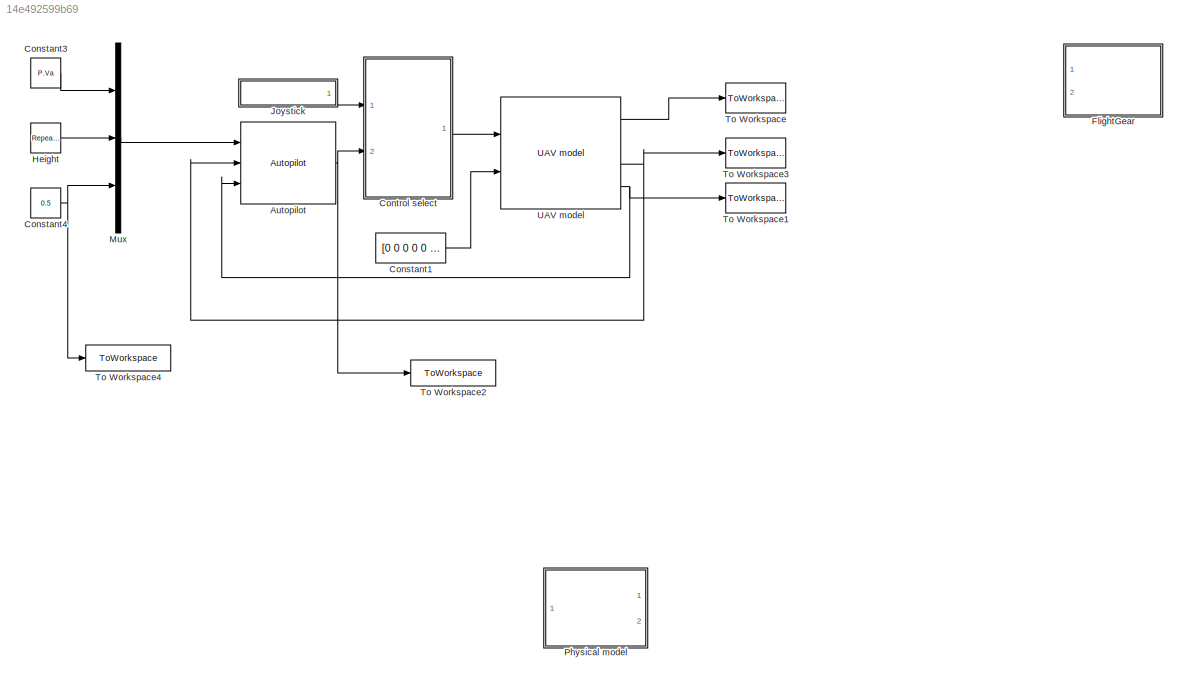
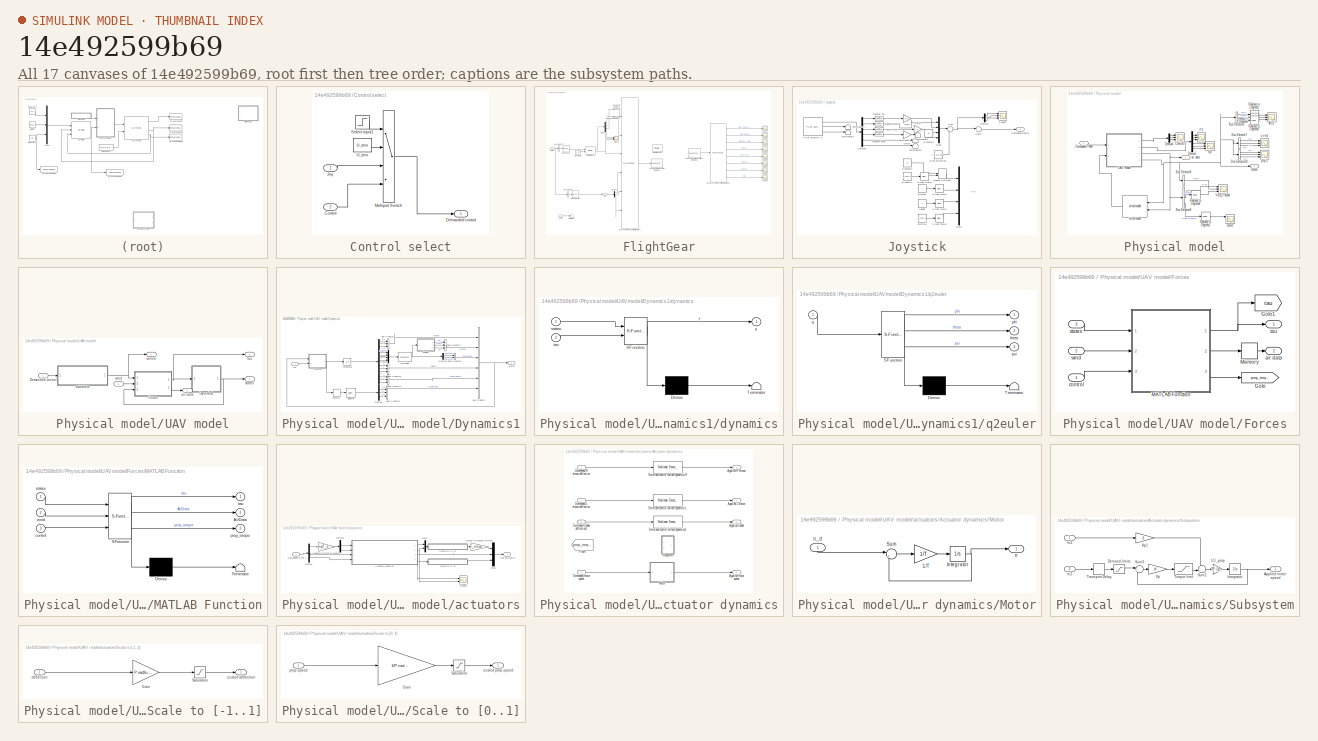
[diagram: thumbnail index - all 17 canvases of the model, root first then tree order]
MODEL slx_14e492599b69
KIND model
CONFIG AbsTol = auto
CONFIG FixedStep = auto
CONFIG MaxStep = auto
CONFIG MinStep = auto
CONFIG RelTol = 1e-3
CONFIG SampleTimeConstraint = Unconstrained
CONFIG Solver = ode45
CONFIG SolverMode = Auto
CONFIG SolverName = ode45
CONFIG StartTime = 0.0
CONFIG StopTime = 100
BLOCK [Reference] Autopilot  REF=X8_lib/Autopilot
  Ports = [3, 1]
  SourceBlock = X8_lib/Autopilot
BLOCK [Constant] Constant1
  Value = [0 0 0 0 0 0]
BLOCK [Constant] Constant3
  Value = P.Va
BLOCK [Constant] Constant4
  Value = 0.5
BLOCK [SubSystem] Control select
  Ports = [2, 1]
  RequestExecContextInheritance = off
  Variant = off
BLOCK [Inport] Control select/Control
  IconDisplay = Port number
  Port = 2
BLOCK [Outport] Control select/Demanded control
  IconDisplay = Port number
BLOCK [Inport] Control select/Joy
  IconDisplay = Port number
BLOCK [MultiPortSwitch] Control select/Multiport Switch
  InputSameDT = off
  Ports = [4, 1]
  SaturateOnIntegerOverflow = off
BLOCK [Step] Control select/Select input1
  After = 3
  Before = 1
  SampleTime = 0
  Time = 0
BLOCK [Constant] Control select/U_trim
  Value = U_trim
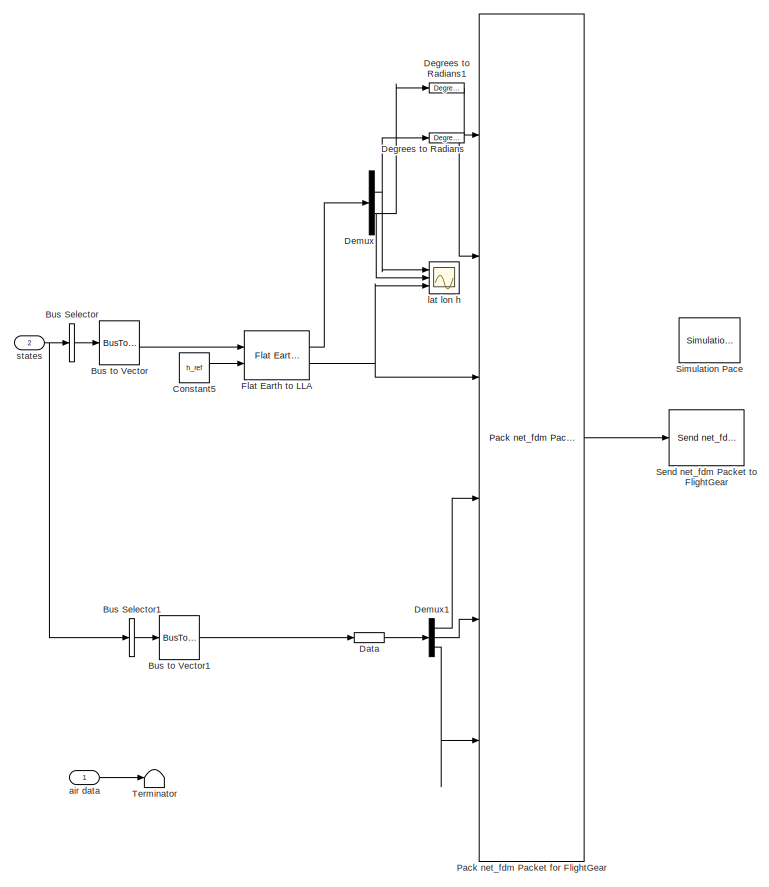
[diagram: FlightGear - part 1/2, left side, full height]
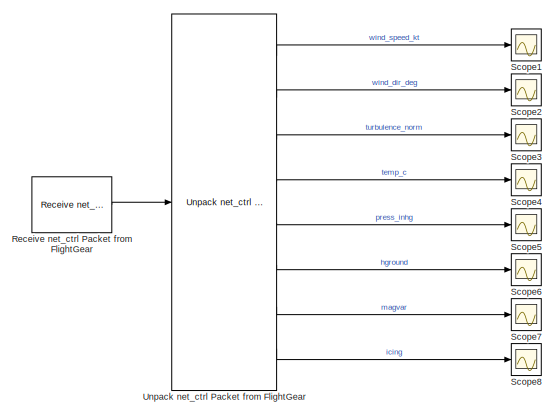
[diagram: FlightGear - part 2/2, middle right region]
BLOCK [SubSystem] FlightGear
  Commented = on
  Ports = [2]
  RequestExecContextInheritance = off
  Variant = off
BLOCK [BusSelector] FlightGear/Bus Selector
  OutputAsBus = on
  OutputSignals = Position.p_N,Position.p_E,Position.p_D
  Ports = [1, 1]
BLOCK [BusSelector] FlightGear/Bus Selector1
  OutputAsBus = on
  OutputSignals = Attitude
  Ports = [1, 1]
BLOCK [BusToVector] FlightGear/Bus to Vector
BLOCK [BusToVector] FlightGear/Bus to Vector1
BLOCK [Constant] FlightGear/Constant5
  Value = h_ref
BLOCK [DataTypeConversion] FlightGear/Data
  OutDataTypeStr = single
  RndMeth = Floor
  SaturateOnIntegerOverflow = off
BLOCK [Reference] FlightGear/Degrees to Radians  REF=simulink_extras/Transformations/Degrees to
Radians
  Ports = [1, 1]
  SourceBlock = simulink_extras/Transformations/Degrees to\nRadians
  SourceType = DegreesToRadians
BLOCK [Reference] FlightGear/Degrees to Radians1  REF=simulink_extras/Transformations/Degrees to
Radians
  Ports = [1, 1]
  SourceBlock = simulink_extras/Transformations/Degrees to\nRadians
  SourceType = DegreesToRadians
BLOCK [Demux] FlightGear/Demux
  DisplayOption = bar
  Outputs = 2
  Ports = [1, 2]
BLOCK [Demux] FlightGear/Demux1
  DisplayOption = bar
  Outputs = 3
  Ports = [1, 3]
BLOCK [Reference] FlightGear/Flat Earth to LLA  REF=aerolibtransform2/Flat Earth to LLA
  Ports = [2, 2]
  SourceBlock = aerolibtransform2/Flat Earth to LLA
  SourceType = Flat Earth to LLA
BLOCK [Reference] FlightGear/Pack net_fdm Packet for FlightGear  REF=aerolibfltsims/Pack
net_fdm Packet
for FlightGear
  AttributesFormatString = Version Selected: %<FlightGearVersion>
  Ports = [6, 1]
  SourceBlock = aerolibfltsims/Pack\nnet_fdm Packet\nfor FlightGear
  SourceType = FlightGearPackNetFdm
BLOCK [Reference] FlightGear/Receive net_ctrl Packet from FlightGear  REF=aerolibfltsims/Receive net_ctrl
Packet from FlightGear
  AttributesFormatString = Version Selected:\n%<FlightGearVersion>
  Ports = [0, 1]
  SourceBlock = aerolibfltsims/Receive net_ctrl\nPacket from FlightGear
  SourceType = FlightGearReceiveNetCtrl
BLOCK [Scope] FlightGear/Scope1
  Ports = [1]
  ScopeSpecificationString = C++SS(StrPVP('Location','[1488, 734, 1812, 973]'),StrPVP('Open','off'),MxPVP('AxesTitles',24,'struct(''axes1'',''%<SignalLabel>'')'),MxPVP('ScopeGraphics',28,'struct(''FigureColor'',''[0.5 0.5 0.5]'',''AxesColor'',''[0 0 0]'',''AxesTickColor'',''[1 1 1]'',''LineColors'',''[1 1 0;1 0 1;0 1 1;1 0 0;0 1 0;0 0 1]'',''LineStyles'',''-|-|-|-|-|-'',''LineWidths'',''[0.5 0.5 0.5 0.5 0.5 0.5]'',''MarkerSty...<+284ch>
BLOCK [Scope] FlightGear/Scope2
  Ports = [1]
  ScopeSpecificationString = C++SS(StrPVP('Location','[188, 390, 512, 629]'),StrPVP('Open','off'),MxPVP('AxesTitles',24,'struct(''axes1'',''%<SignalLabel>'')'),StrPVP('SaveName','ScopeData1'),StrPVP('DataFormat','StructureWithTime'),StrPVP('BlockParamSampleTime','0'),StrPVP('LimitDataPoints','on'),StrPVP('Decimation','1'),StrPVP('BlockParamSampleInput','off'))
BLOCK [Scope] FlightGear/Scope3
  Ports = [1]
  ScopeSpecificationString = C++SS(StrPVP('Location','[188, 390, 512, 629]'),StrPVP('Open','off'),MxPVP('AxesTitles',24,'struct(''axes1'',''%<SignalLabel>'')'),StrPVP('SaveName','ScopeData2'),StrPVP('DataFormat','StructureWithTime'),StrPVP('BlockParamSampleTime','0'),StrPVP('LimitDataPoints','on'),StrPVP('Decimation','1'),StrPVP('BlockParamSampleInput','off'))
BLOCK [Scope] FlightGear/Scope4
  Ports = [1]
  ScopeSpecificationString = C++SS(StrPVP('Location','[1059, 481, 1383, 720]'),StrPVP('Open','off'),MxPVP('AxesTitles',24,'struct(''axes1'',''%<SignalLabel>'')'),MxPVP('ScopeGraphics',28,'struct(''FigureColor'',''[0.5 0.5 0.5]'',''AxesColor'',''[0 0 0]'',''AxesTickColor'',''[1 1 1]'',''LineColors'',''[1 1 0;1 0 1;0 1 1;1 0 0;0 1 0;0 0 1]'',''LineStyles'',''-|-|-|-|-|-'',''LineWidths'',''[0.5 0.5 0.5 0.5 0.5 0.5]'',''MarkerSty...<+295ch>
BLOCK [Scope] FlightGear/Scope5
  Ports = [1]
  ScopeSpecificationString = C++SS(StrPVP('Location','[188, 390, 512, 629]'),StrPVP('Open','off'),MxPVP('AxesTitles',24,'struct(''axes1'',''%<SignalLabel>'')'),MxPVP('ScopeGraphics',28,'struct(''FigureColor'',''[0.5 0.5 0.5]'',''AxesColor'',''[0 0 0]'',''AxesTickColor'',''[1 1 1]'',''LineColors'',''[1 1 0;1 0 1;0 1 1;1 0 0;0 1 0;0 0 1]'',''LineStyles'',''-|-|-|-|-|-'',''LineWidths'',''[0.5 0.5 0.5 0.5 0.5 0.5]'',''MarkerStyle...<+293ch>
BLOCK [Scope] FlightGear/Scope6
  Ports = [1]
  ScopeSpecificationString = C++SS(StrPVP('Location','[188, 390, 512, 629]'),StrPVP('Open','off'),MxPVP('AxesTitles',24,'struct(''axes1'',''%<SignalLabel>'')'),StrPVP('SaveName','ScopeData5'),StrPVP('DataFormat','StructureWithTime'),StrPVP('BlockParamSampleTime','0'),StrPVP('LimitDataPoints','on'),StrPVP('Decimation','1'),StrPVP('BlockParamSampleInput','off'))
BLOCK [Scope] FlightGear/Scope7
  Ports = [1]
  ScopeSpecificationString = C++SS(StrPVP('Location','[188, 390, 512, 629]'),StrPVP('Open','off'),MxPVP('AxesTitles',24,'struct(''axes1'',''%<SignalLabel>'')'),StrPVP('SaveName','ScopeData6'),StrPVP('DataFormat','StructureWithTime'),StrPVP('BlockParamSampleTime','0'),StrPVP('LimitDataPoints','on'),StrPVP('Decimation','1'),StrPVP('BlockParamSampleInput','off'))
BLOCK [Scope] FlightGear/Scope8
  Ports = [1]
  ScopeSpecificationString = C++SS(StrPVP('Location','[188, 390, 512, 629]'),StrPVP('Open','off'),MxPVP('AxesTitles',24,'struct(''axes1'',''%<SignalLabel>'')'),StrPVP('SaveName','ScopeData7'),StrPVP('DataFormat','StructureWithTime'),StrPVP('BlockParamSampleTime','0'),StrPVP('LimitDataPoints','on'),StrPVP('Decimation','1'),StrPVP('BlockParamSampleInput','off'))
BLOCK [Reference] FlightGear/Send net_fdm Packet to FlightGear  REF=aerolibfltsims/Send
net_fdm Packet
to FlightGear
  Ports = [1]
  SourceBlock = aerolibfltsims/Send\nnet_fdm Packet\nto FlightGear
  SourceType = FlightGearSendNetFdm
BLOCK [Reference] FlightGear/Simulation Pace  REF=aerolibanimutils/Simulation Pace
  AttributesFormatString = %<SimulationPace> sec/sec
  Ports = []
  SourceBlock = aerolibanimutils/Simulation Pace
  SourceType = Simulation Pace
BLOCK [Terminator] FlightGear/Terminator
BLOCK [Reference] FlightGear/Unpack net_ctrl Packet from FlightGear  REF=aerolibfltsims/Unpack
net_ctrl Packet
from FlightGear
  AttributesFormatString = Version Selected: %<FlightGearVersion>
  Ports = [1, 8]
  SourceBlock = aerolibfltsims/Unpack\nnet_ctrl Packet\nfrom FlightGear
  SourceType = FlightGearUnpackNetCtrl
BLOCK [Inport] FlightGear/air data
  IconDisplay = Port number
BLOCK [Scope] FlightGear/lat lon h
  NumInputPorts = 3
  Ports = [3]
  ScopeSpecificationString = C++SS(StrPVP('Location','[969, 56, 1913, 1151]'),StrPVP('Open','off'),MxPVP('AxesTitles',24,'struct(''axes1'',''%<SignalLabel>'',''axes2'',''%<SignalLabel>'',''axes3'',''%<SignalLabel>'')'),MxPVP('ScopeGraphics',28,'struct(''FigureColor'',''[0.5 0.5 0.5]'',''AxesColor'',''[0 0 0]'',''AxesTickColor'',''[1 1 1]'',''LineColors'',''[1 1 0;1 0 1;0 1 1;1 0 0;0 1 0;0 0 1]'',''LineStyles'',''-|-|-|-|-|-''...<+376ch>
BLOCK [Inport] FlightGear/states
  IconDisplay = Port number
  Port = 2
BLOCK [Reference] Height  REF=simulink/Sources/Repeating
Sequence
  Ports = [0, 1]
  SourceBlock = simulink/Sources/Repeating\nSequence
  SourceType = Repeating table
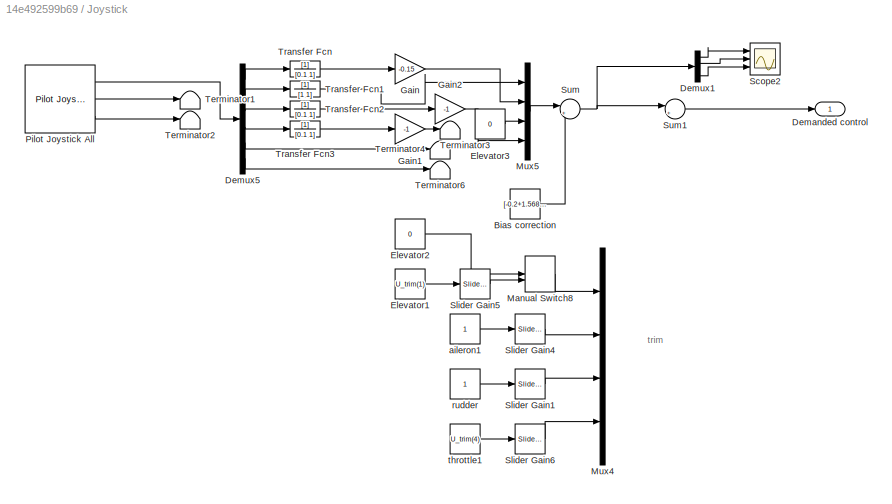
BLOCK [SubSystem] Joystick
  Commented = on
  Ports = [0, 1]
  RequestExecContextInheritance = off
  Variant = off
BLOCK [Constant] Joystick/Bias correction
  Value = [-0.2+1.5687e-3   3e-5  0.0   0.9687-0.2]
BLOCK [Outport] Joystick/Demanded control
  IconDisplay = Port number
BLOCK [Demux] Joystick/Demux1
  DisplayOption = bar
  Ports = [1, 4]
BLOCK [Demux] Joystick/Demux5
  DisplayOption = bar
  Outputs = 6
  Ports = [1, 6]
BLOCK [Constant] Joystick/Elevator1
  Value = U_trim(1)
BLOCK [Constant] Joystick/Elevator2
  Value = 0
BLOCK [Constant] Joystick/Elevator3
  Value = 0
BLOCK [Gain] Joystick/Gain
  Gain = -0.15
  OutDataTypeStr = Inherit: Inherit via internal rule
  ParamDataTypeStr = Inherit: Inherit via internal rule
  SaturateOnIntegerOverflow = off
BLOCK [Gain] Joystick/Gain1
  Gain = -1
  OutDataTypeStr = Inherit: Inherit via internal rule
  ParamDataTypeStr = Inherit: Inherit via internal rule
  SaturateOnIntegerOverflow = off
BLOCK [Gain] Joystick/Gain2
  Gain = -1
  OutDataTypeStr = Inherit: Inherit via internal rule
  ParamDataTypeStr = Inherit: Inherit via internal rule
  SaturateOnIntegerOverflow = off
BLOCK [ManualSwitch] Joystick/Manual Switch8
  CurrentSetting = 0
BLOCK [Mux] Joystick/Mux4
  DisplayOption = bar
  Ports = [4, 1]
BLOCK [Mux] Joystick/Mux5
  DisplayOption = bar
  Ports = [4, 1]
BLOCK [Reference] Joystick/Pilot Joystick All  REF=aerolibanimutils/Pilot Joystick
  Ports = [0, 3]
  SourceBlock = aerolibanimutils/Pilot Joystick
  SourceType = PilotJoystick
BLOCK [Scope] Joystick/Scope2
  NumInputPorts = 3
  Ports = [3]
  ScopeSpecificationString = C++SS(StrPVP('Location','[969, 56, 1913, 1151]'),StrPVP('Open','off'),StrPVP('ZoomMode','yonly'),MxPVP('AxesTitles',24,'struct(''axes1'',''%<SignalLabel>'',''axes2'',''%<SignalLabel>'',''axes3'',''%<SignalLabel>'')'),MxPVP('ScopeGraphics',28,'struct(''FigureColor'',''[0.5 0.5 0.5]'',''AxesColor'',''[0 0 0]'',''AxesTickColor'',''[1 1 1]'',''LineColors'',''[1 1 0;1 0 1;0 1 1;1 0 0;0 1 0;0 0 1]'',''L...<+414ch>
BLOCK [Reference] Joystick/Slider Gain1  REF=simulink/Math
Operations/Slider
Gain
  Ports = [1, 1]
  SourceBlock = simulink/Math\nOperations/Slider\nGain
  SourceType = Slider Gain
BLOCK [Reference] Joystick/Slider Gain4  REF=simulink/Math
Operations/Slider
Gain
  Ports = [1, 1]
  SourceBlock = simulink/Math\nOperations/Slider\nGain
  SourceType = Slider Gain
BLOCK [Reference] Joystick/Slider Gain5  REF=simulink/Math
Operations/Slider
Gain
  Ports = [1, 1]
  SourceBlock = simulink/Math\nOperations/Slider\nGain
  SourceType = Slider Gain
BLOCK [Reference] Joystick/Slider Gain6  REF=simulink/Math
Operations/Slider
Gain
  Ports = [1, 1]
  SourceBlock = simulink/Math\nOperations/Slider\nGain
  SourceType = Slider Gain
BLOCK [Sum] Joystick/Sum
  IconShape = round
  InputSameDT = off
  Inputs = |++
  OutDataTypeStr = Inherit: Inherit via internal rule
  Ports = [2, 1]
  SaturateOnIntegerOverflow = off
BLOCK [Sum] Joystick/Sum1
  IconShape = round
  InputSameDT = off
  Inputs = |++
  OutDataTypeStr = Inherit: Inherit via internal rule
  Ports = [2, 1]
  SaturateOnIntegerOverflow = off
BLOCK [Terminator] Joystick/Terminator1
BLOCK [Terminator] Joystick/Terminator2
BLOCK [Terminator] Joystick/Terminator3
BLOCK [Terminator] Joystick/Terminator4
BLOCK [Terminator] Joystick/Terminator6
BLOCK [TransferFcn] Joystick/Transfer Fcn
  Denominator = [0.1 1]
BLOCK [TransferFcn] Joystick/Transfer Fcn1
  Denominator = [1 1]
BLOCK [TransferFcn] Joystick/Transfer Fcn2
  Denominator = [0.1 1]
BLOCK [TransferFcn] Joystick/Transfer Fcn3
  Denominator = [0.1 1]
BLOCK [Constant] Joystick/aileron1
BLOCK [Constant] Joystick/rudder
BLOCK [Constant] Joystick/throttle1
  Value = U_trim(4)
BLOCK [Mux] Mux
  DisplayOption = bar
  Inputs = 3
  Ports = [3, 1]
BLOCK [SubSystem] Physical model
  Ports = [1, 2]
  RequestExecContextInheritance = off
  Variant = off
BLOCK [Scope] Physical model/Att1
  NumInputPorts = 3
  Ports = [3]
  ScopeSpecificationString = Simulink.scopes.TimeScopeBlockCfg('CurrentConfiguration', extmgr.ConfigurationSet(extmgr.Configuration('Core','General UI',true),extmgr.Configuration('Core','Source UI',true),extmgr.Configuration('Sources','WiredSimulink',true,'DataLoggingVariableName','ScopeData27','DataLoggingSaveFormat','StructureWithTime','DataLoggingDecimation','1','DataLoggingDecimateData',true),extmgr.Configuration('Visuals...<+3055ch>
BLOCK [BusSelector] Physical model/Bus Selector10
  OutputSignals = AngularVelocity.p,AngularVelocity.q,AngularVelocity.r
  Ports = [1, 3]
BLOCK [BusSelector] Physical model/Bus Selector6
  OutputSignals = Attitude.phi,Attitude.theta,Attitude.psi
  Ports = [1, 3]
BLOCK [BusSelector] Physical model/Bus Selector7
  OutputSignals = Velocity.u,Velocity.v,Velocity.w
  Ports = [1, 3]
BLOCK [BusSelector] Physical model/Bus Selector8
  OutputSignals = Va,alpha,Course_angle
  Ports = [1, 3]
BLOCK [BusSelector] Physical model/Bus Selector9
  OutputSignals = Position.p_D
  Ports = [1, 1]
BLOCK [Scope] Physical model/Control2
  NumInputPorts = 3
  Ports = [3]
  ScopeSpecificationString = Simulink.scopes.TimeScopeBlockCfg('CurrentConfiguration', extmgr.ConfigurationSet(extmgr.Configuration('Core','General UI',true),extmgr.Configuration('Core','Source UI',true),extmgr.Configuration('Sources','WiredSimulink',true,'DataLoggingVariableName','ScopeData28','DataLoggingSaveFormat','StructureWithTime','DataLoggingDecimation','1','DataLoggingDecimateData',true),extmgr.Configuration('Visuals...<+2928ch>
BLOCK [Inport] Physical model/Demanded PWM
  IconDisplay = Port number
BLOCK [Demux] Physical model/Demux4
  DisplayOption = bar
  Ports = [1, 4]
BLOCK [Demux] Physical model/Demux5
  DisplayOption = bar
  Outputs = 6
  Ports = [1, 6]
BLOCK [Scope] Physical model/F2
  NumInputPorts = 3
  Ports = [3]
  ScopeSpecificationString = C++SS(StrPVP('Location','[6, 57, 950, 1152]'),StrPVP('Open','off'),MxPVP('AxesTitles',24,'struct(''axes1'',''%<SignalLabel>'',''axes2'',''%<SignalLabel>'',''axes3'',''%<SignalLabel>'')'),MxPVP('ScopeGraphics',28,'struct(''FigureColor'',''[0.5 0.5 0.5]'',''AxesColor'',''[0 0 0]'',''AxesTickColor'',''[1 1 1]'',''LineColors'',''[1 1 0;1 0 1;0 1 1;1 0 0;0 1 0;0 0 1]'',''LineStyles'',''-|-|-|-|-|-'',''...<+354ch>
BLOCK [Scope] Physical model/M2
  NumInputPorts = 3
  Ports = [3]
  ScopeSpecificationString = C++SS(StrPVP('Location','[41, 95, 985, 1190]'),StrPVP('Open','off'),StrPVP('ZoomMode','yonly'),MxPVP('AxesTitles',24,'struct(''axes1'',''%<SignalLabel>'',''axes2'',''%<SignalLabel>'',''axes3'',''%<SignalLabel>'')'),MxPVP('ScopeGraphics',28,'struct(''FigureColor'',''[0.5 0.5 0.5]'',''AxesColor'',''[0 0 0]'',''AxesTickColor'',''[1 1 1]'',''LineColors'',''[1 1 0;1 0 1;0 1 1;1 0 0;0 1 0;0 0 1]'',''Lin...<+387ch>
BLOCK [Reference] Physical model/Radians to Degrees1  REF=simulink_extras/Transformations/Radians
to Degrees
  Ports = [1, 1]
  SourceBlock = simulink_extras/Transformations/Radians\nto Degrees
  SourceType = RadiansToDegrees
BLOCK [Reference] Physical model/Radians to Degrees5  REF=simulink_extras/Transformations/Radians
to Degrees
  Ports = [1, 1]
  SourceBlock = simulink_extras/Transformations/Radians\nto Degrees
  SourceType = RadiansToDegrees
BLOCK [Reference] Physical model/Radians to Degrees6  REF=simulink_extras/Transformations/Radians
to Degrees
  Ports = [1, 1]
  SourceBlock = simulink_extras/Transformations/Radians\nto Degrees
  SourceType = RadiansToDegrees
BLOCK [Reference] Physical model/Radians to Degrees7  REF=simulink_extras/Transformations/Radians
to Degrees
  Ports = [1, 1]
  SourceBlock = simulink_extras/Transformations/Radians\nto Degrees
  SourceType = RadiansToDegrees
BLOCK [Reference] Physical model/Radians to Degrees8  REF=simulink_extras/Transformations/Radians
to Degrees
  Ports = [1, 1]
  SourceBlock = simulink_extras/Transformations/Radians\nto Degrees
  SourceType = RadiansToDegrees
BLOCK [SubSystem] Physical model/UAV model
  AncestorBlock = X8_lib/UAV model
  Ports = [2, 4]
  RequestExecContextInheritance = off
  Variant = off
BLOCK [Inport] Physical model/UAV model/Demanded control
  IconDisplay = Port number
BLOCK [SubSystem] Physical model/UAV model/Dynamics1
  Ports = [1, 1]
  RequestExecContextInheritance = off
  Variant = off
BLOCK [BusCreator] Physical model/UAV model/Dynamics1/Bus Creator
  DisplayOption = bar
  InheritFromInputs = on
  Inputs = 6
  OutDataTypeStr = Bus: States
  Ports = [6, 1]
BLOCK [BusCreator] Physical model/UAV model/Dynamics1/Bus Creator1
  DisplayOption = bar
  InheritFromInputs = on
  Inputs = 3
  OutDataTypeStr = Bus: Position
  Ports = [3, 1]
BLOCK [BusCreator] Physical model/UAV model/Dynamics1/Bus Creator2
  DisplayOption = bar
  InheritFromInputs = on
  Inputs = 3
  OutDataTypeStr = Bus: Attitude
  Ports = [3, 1]
BLOCK [BusCreator] Physical model/UAV model/Dynamics1/Bus Creator3
  DisplayOption = bar
  InheritFromInputs = on
  Inputs = 3
  OutDataTypeStr = Bus: Velocity
  Ports = [3, 1]
BLOCK [BusCreator] Physical model/UAV model/Dynamics1/Bus Creator4
  DisplayOption = bar
  InheritFromInputs = on
  Inputs = 3
  OutDataTypeStr = Bus: AngularVelocity
  Ports = [3, 1]
BLOCK [BusCreator] Physical model/UAV model/Dynamics1/Bus Creator5
  DisplayOption = bar
  InheritFromInputs = on
  Inputs = 3
  OutDataTypeStr = Bus: Acceleration
  Ports = [3, 1]
BLOCK [BusCreator] Physical model/UAV model/Dynamics1/Bus Creator6
  DisplayOption = bar
  InheritFromInputs = on
  Inputs = 2
  OutDataTypeStr = Bus: Quaternion
  Ports = [2, 1]
BLOCK [Demux] Physical model/UAV model/Dynamics1/Demux
  DisplayOption = bar
  Outputs = 13
  Ports = [1, 13]
BLOCK [Demux] Physical model/UAV model/Dynamics1/Demux1
  DisplayOption = bar
  Outputs = 3
  Ports = [1, 3]
BLOCK [Demux] Physical model/UAV model/Dynamics1/Demux3
  DisplayOption = bar
  Outputs = [1,3]
  Ports = [1, 2]
BLOCK [Integrator] Physical model/UAV model/Dynamics1/Integrator
  InitialCondition = [pos0,quat0,vel0,rate0]%x0(1:13)
  Ports = [1, 1]
BLOCK [Memory] Physical model/UAV model/Dynamics1/Memory
BLOCK [Mux] Physical model/UAV model/Dynamics1/Mux1
  DisplayOption = bar
  Ports = [4, 1]
BLOCK [Reference] Physical model/UAV model/Dynamics1/Normalize  REF=aerolibutil/Quaternion
Normalize
  Ports = [1, 1]
  SourceBlock = aerolibutil/Quaternion\nNormalize
  SourceType = Quaternion Normalize
BLOCK [Selector] Physical model/UAV model/Dynamics1/Selector
  IndexOptions = Index vector (dialog)
  Indices = 8:10
  InputPortWidth = 13
  OutputSizes = 1
  Ports = [1, 1]
BLOCK [SubSystem] Physical model/UAV model/Dynamics1/dynamics
  ErrorFcn = Stateflow.Translate.translate
  PermitHierarchicalResolution = ExplicitOnly
  Ports = [2, 1]
  RequestExecContextInheritance = off
  SFBlockType = MATLAB Function
  TreatAsAtomicUnit = on
  Variant = off
BLOCK [Demux] Physical model/UAV model/Dynamics1/dynamics/ Demux 
  Outputs = 1
  Ports = [1, 1]
BLOCK [S-Function] Physical model/UAV model/Dynamics1/dynamics/ SFunction 
  EnableBusSupport = on
  FunctionName = sf_sfun
  Parameters = P
  PortCounts = [2 2]
  Ports = [2, 2]
  SFunctionDeploymentMode = off
  Tag = Stateflow S-Function demo 3
BLOCK [Terminator] Physical model/UAV model/Dynamics1/dynamics/ Terminator 
BLOCK [Inport] Physical model/UAV model/Dynamics1/dynamics/states
  IconDisplay = Port number
BLOCK [Inport] Physical model/UAV model/Dynamics1/dynamics/tau
  IconDisplay = Port number
  Port = 2
BLOCK [Outport] Physical model/UAV model/Dynamics1/dynamics/y
  IconDisplay = Port number
BLOCK [SubSystem] Physical model/UAV model/Dynamics1/q2euler
  ErrorFcn = Stateflow.Translate.translate
  PermitHierarchicalResolution = ExplicitOnly
  Ports = [1, 3]
  RequestExecContextInheritance = off
  SFBlockType = MATLAB Function
  TreatAsAtomicUnit = on
  Variant = off
BLOCK [Demux] Physical model/UAV model/Dynamics1/q2euler/ Demux 
  Outputs = 1
  Ports = [1, 1]
BLOCK [S-Function] Physical model/UAV model/Dynamics1/q2euler/ SFunction 
  EnableBusSupport = on
  FunctionName = sf_sfun
  PortCounts = [1 4]
  Ports = [1, 4]
  SFunctionDeploymentMode = off
  Tag = Stateflow S-Function demo 2
BLOCK [Terminator] Physical model/UAV model/Dynamics1/q2euler/ Terminator 
BLOCK [Outport] Physical model/UAV model/Dynamics1/q2euler/phi
  IconDisplay = Port number
BLOCK [Outport] Physical model/UAV model/Dynamics1/q2euler/psi
  IconDisplay = Port number
  Port = 3
BLOCK [Inport] Physical model/UAV model/Dynamics1/q2euler/q
  IconDisplay = Port number
BLOCK [Outport] Physical model/UAV model/Dynamics1/q2euler/theta
  IconDisplay = Port number
  Port = 2
BLOCK [Outport] Physical model/UAV model/Dynamics1/states
  IconDisplay = Port number
BLOCK [Inport] Physical model/UAV model/Dynamics1/tau
  IconDisplay = Port number
BLOCK [SubSystem] Physical model/UAV model/Forces
  Ports = [3, 2]
  RequestExecContextInheritance = off
  Variant = off
BLOCK [Goto] Physical model/UAV model/Forces/Goto
  Commented = on
  GotoTag = prop_torque
  TagVisibility = global
BLOCK [Goto] Physical model/UAV model/Forces/Goto1
  Commented = on
  GotoTag = tau
  IconDisplay = Tag and signal name
  TagVisibility = global
BLOCK [SubSystem] Physical model/UAV model/Forces/MATLAB Function
  ErrorFcn = Stateflow.Translate.translate
  PermitHierarchicalResolution = ExplicitOnly
  Ports = [3, 3]
  RequestExecContextInheritance = off
  SFBlockType = MATLAB Function
  TreatAsAtomicUnit = on
  Variant = off
BLOCK [Demux] Physical model/UAV model/Forces/MATLAB Function/ Demux 
  Outputs = 1
  Ports = [1, 1]
BLOCK [S-Function] Physical model/UAV model/Forces/MATLAB Function/ SFunction 
  EnableBusSupport = on
  FunctionName = sf_sfun
  Parameters = P
  PortCounts = [3 4]
  Ports = [3, 4]
  SFunctionDeploymentMode = off
  Tag = Stateflow S-Function demo 1
BLOCK [Terminator] Physical model/UAV model/Forces/MATLAB Function/ Terminator 
BLOCK [Outport] Physical model/UAV model/Forces/MATLAB Function/AirData
  IconDisplay = Port number
  Port = 2
BLOCK [Inport] Physical model/UAV model/Forces/MATLAB Function/control
  IconDisplay = Port number
  Port = 3
BLOCK [Outport] Physical model/UAV model/Forces/MATLAB Function/prop_torque
  IconDisplay = Port number
  Port = 3
BLOCK [Inport] Physical model/UAV model/Forces/MATLAB Function/states
  IconDisplay = Port number
BLOCK [Outport] Physical model/UAV model/Forces/MATLAB Function/tau
  IconDisplay = Port number
BLOCK [Inport] Physical model/UAV model/Forces/MATLAB Function/wind
  IconDisplay = Port number
  Port = 2
BLOCK [Memory] Physical model/UAV model/Forces/Memory
  X0 = 1e-15
BLOCK [Outport] Physical model/UAV model/Forces/air data
  IconDisplay = Port number
  Port = 2
BLOCK [Inport] Physical model/UAV model/Forces/control
  IconDisplay = Port number
BLOCK [Inport] Physical model/UAV model/Forces/states
  IconDisplay = Port number
  Port = 3
BLOCK [Outport] Physical model/UAV model/Forces/tau
  IconDisplay = Port number
BLOCK [Inport] Physical model/UAV model/Forces/wind
  IconDisplay = Port number
  Port = 2
BLOCK [SubSystem] Physical model/UAV model/actuators
  Ports = [1, 1]
  RequestExecContextInheritance = off
  Variant = off
BLOCK [SubSystem] Physical model/UAV model/actuators/Actuator dynamics
  Ports = [4, 4]
  RequestExecContextInheritance = off
  Variant = off
BLOCK [Outport] Physical model/UAV model/actuators/Actuator dynamics/Applied L elevon
  IconDisplay = Port number
  Port = 2
BLOCK [Outport] Physical model/UAV model/actuators/Actuator dynamics/Applied R elevon
  IconDisplay = Port number
BLOCK [Outport] Physical model/UAV model/actuators/Actuator dynamics/Applied motor speed
  IconDisplay = Port number
  Port = 4
BLOCK [Outport] Physical model/UAV model/actuators/Actuator dynamics/Applied rudder
  IconDisplay = Port number
  Port = 3
BLOCK [Inport] Physical model/UAV model/actuators/Actuator dynamics/Demanded L elevon deflection 
  IconDisplay = Port number
  Port = 2
BLOCK [Inport] Physical model/UAV model/actuators/Actuator dynamics/Demanded R elevon deflection
  IconDisplay = Port number
BLOCK [Inport] Physical model/UAV model/actuators/Actuator dynamics/Demanded motor speed
  IconDisplay = Port number
  Port = 4
BLOCK [Inport] Physical model/UAV model/actuators/Actuator dynamics/Demanded rudder deflection1
  IconDisplay = Port number
  Port = 3
BLOCK [From] Physical model/UAV model/actuators/Actuator dynamics/From
  Commented = on
  GotoTag = prop_torque
  IconDisplay = Tag and signal name
  TagVisibility = global
BLOCK [SubSystem] Physical model/UAV model/actuators/Actuator dynamics/Motor
  Ports = [1, 1]
  RequestExecContextInheritance = off
  Variant = off
BLOCK [Gain] Physical model/UAV model/actuators/Actuator dynamics/Motor/1//T
  Gain = 1/T
  OutDataTypeStr = Inherit: Inherit via internal rule
  ParamDataTypeStr = Inherit: Inherit via internal rule
  SaturateOnIntegerOverflow = off
BLOCK [Integrator] Physical model/UAV model/actuators/Actuator dynamics/Motor/Integrator
  ContinuousStateAttributes = 'throttle'
  InitialCondition = X0
  Ports = [1, 1]
BLOCK [Sum] Physical model/UAV model/actuators/Actuator dynamics/Motor/Sum
  IconShape = round
  InputSameDT = off
  Inputs = |+-
  OutDataTypeStr = Inherit: Inherit via internal rule
  Ports = [2, 1]
  SaturateOnIntegerOverflow = off
BLOCK [Outport] Physical model/UAV model/actuators/Actuator dynamics/Motor/n
  IconDisplay = Port number
BLOCK [Inport] Physical model/UAV model/actuators/Actuator dynamics/Motor/n_d
  IconDisplay = Port number
BLOCK [Reference] Physical model/UAV model/actuators/Actuator dynamics/Servo and control surface dynamics L  REF=aerolibactuator/Nonlinear Second-Order Actuator
  Ports = [1, 1]
  SourceBlock = aerolibactuator/Nonlinear Second-Order Actuator
  SourceType = NonlinearSecondOrderActuator
BLOCK [Reference] Physical model/UAV model/actuators/Actuator dynamics/Servo and control surface dynamics R  REF=aerolibactuator/Nonlinear Second-Order Actuator
  Ports = [1, 1]
  SourceBlock = aerolibactuator/Nonlinear Second-Order Actuator
  SourceType = NonlinearSecondOrderActuator
BLOCK [Reference] Physical model/UAV model/actuators/Actuator dynamics/Servo and control surface dynamics1  REF=aerolibactuator/Nonlinear Second-Order Actuator
  Commented = through
  Ports = [1, 1]
  SourceBlock = aerolibactuator/Nonlinear Second-Order Actuator
  SourceType = NonlinearSecondOrderActuator
BLOCK [SubSystem] Physical model/UAV model/actuators/Actuator dynamics/Subsystem
  Commented = on
  Ports = [2, 1]
  RequestExecContextInheritance = off
  Variant = off
BLOCK [Gain] Physical model/UAV model/actuators/Actuator dynamics/Subsystem/1//J_prop
  Gain = 1/P.J_prop
BLOCK [Outport] Physical model/UAV model/actuators/Actuator dynamics/Subsystem/Applied motor speed
  IconDisplay = Port number
BLOCK [Saturate] Physical model/UAV model/actuators/Actuator dynamics/Subsystem/Demand limits
  InputPortMap = u0
  LowerLimit = 0
  Ports = [1, 1]
  UpperLimit = 1
BLOCK [Inport] Physical model/UAV model/actuators/Actuator dynamics/Subsystem/In1
  IconDisplay = Port number
BLOCK [Inport] Physical model/UAV model/actuators/Actuator dynamics/Subsystem/In2
  IconDisplay = Port number
  Port = 2
BLOCK [Integrator] Physical model/UAV model/actuators/Actuator dynamics/Subsystem/Integrator
  InitialCondition = 0.5
  Ports = [1, 1]
BLOCK [Gain] Physical model/UAV model/actuators/Actuator dynamics/Subsystem/Kp
BLOCK [Gain] Physical model/UAV model/actuators/Actuator dynamics/Subsystem/Kp1
  Gain = -1
BLOCK [Sum] Physical model/UAV model/actuators/Actuator dynamics/Subsystem/Sum2
  IconShape = round
  Inputs = -+|
  Ports = [2, 1]
BLOCK [Sum] Physical model/UAV model/actuators/Actuator dynamics/Subsystem/Sum3
  IconShape = round
  Inputs = |+-
  Ports = [2, 1]
BLOCK [Saturate] Physical model/UAV model/actuators/Actuator dynamics/Subsystem/Torque limit
  InputPortMap = u0
  LowerLimit = 0
  Ports = [1, 1]
  UpperLimit = P.motor.torque_max
  ZeroCross = off
BLOCK [TransportDelay] Physical model/UAV model/actuators/Actuator dynamics/Subsystem/Transport Delay
  DelayTime = 0.001
  PadeOrder = 1
  Ports = [1, 1]
BLOCK [Outport] Physical model/UAV model/actuators/Applied control
  IconDisplay = Port number
BLOCK [Inport] Physical model/UAV model/actuators/Demanded PWM
  IconDisplay = Port number
BLOCK [Demux] Physical model/UAV model/actuators/Demux
  DisplayOption = bar
  Outputs = [2,1,1]
  Ports = [1, 3]
BLOCK [Demux] Physical model/UAV model/actuators/Demux2
  DisplayOption = bar
  Outputs = 2
  Ports = [1, 2]
BLOCK [Mux] Physical model/UAV model/actuators/Mux1
  DisplayOption = bar
  Inputs = 2
  Ports = [2, 1]
BLOCK [Mux] Physical model/UAV model/actuators/Mux5
  DisplayOption = bar
  Inputs = 3
  Ports = [3, 1]
BLOCK [SubSystem] Physical model/UAV model/actuators/Scale to [-1..1]
  Ports = [1, 1]
  RequestExecContextInheritance = off
  Variant = off
BLOCK [Gain] Physical model/UAV model/actuators/Scale to [-1..1]/Gain
  Gain = P.rad2unit
  OutDataTypeStr = Inherit: Inherit via internal rule
  ParamDataTypeStr = Inherit: Inherit via internal rule
  SaturateOnIntegerOverflow = off
BLOCK [Saturate] Physical model/UAV model/actuators/Scale to [-1..1]/Saturation
  InputPortMap = u0
  LowerLimit = -1
  Ports = [1, 1]
  UpperLimit = 1
BLOCK [Inport] Physical model/UAV model/actuators/Scale to [-1..1]/deflection
  IconDisplay = Port number
BLOCK [Outport] Physical model/UAV model/actuators/Scale to [-1..1]/scaled deflection
  IconDisplay = Port number
BLOCK [SubSystem] Physical model/UAV model/actuators/Scale to [0..1]
  Ports = [1, 1]
  RequestExecContextInheritance = off
  Variant = off
BLOCK [Gain] Physical model/UAV model/actuators/Scale to [0..1]/Gain
  Commented = through
  Gain = 1/P.motor.omega_max
  OutDataTypeStr = Inherit: Inherit via internal rule
  ParamDataTypeStr = Inherit: Inherit via internal rule
  SaturateOnIntegerOverflow = off
BLOCK [Saturate] Physical model/UAV model/actuators/Scale to [0..1]/Saturation
  InputPortMap = u0
  LowerLimit = 0
  Ports = [1, 1]
  UpperLimit = 1
BLOCK [Inport] Physical model/UAV model/actuators/Scale to [0..1]/prop speed
  IconDisplay = Port number
BLOCK [Outport] Physical model/UAV model/actuators/Scale to [0..1]/scaled prop speed
  IconDisplay = Port number
BLOCK [Scope] Physical model/UAV model/actuators/Scope1
  NumInputPorts = 2
  Ports = [2]
  ScopeSpecificationString = C++SS(StrPVP('Location','[9, 56, 953, 1151]'),StrPVP('Open','off'),StrPVP('ZoomMode','xonly'),MxPVP('AxesTitles',24,'struct(''axes1'',''%<SignalLabel>'',''axes2'',''%<SignalLabel>'')'),MxPVP('ScopeGraphics',28,'struct(''FigureColor'',''[0.5 0.5 0.5]'',''AxesColor'',''[0 0 0]'',''AxesTickColor'',''[1 1 1]'',''LineColors'',''[1 1 0;1 0 1;0 1 1;1 0 0;0 1 0;0 0 1]'',''LineStyles'',''-|-|-|-|-|-'',''Li...<+358ch>
BLOCK [Gain] Physical model/UAV model/actuators/elevator-aileron to elevon
  Gain = inv(T_elevon2ailelev)
  Multiplication = Matrix(K*u) (u vector)
  OutDataTypeStr = Inherit: Inherit via internal rule
  ParamDataTypeStr = Inherit: Inherit via internal rule
  SaturateOnIntegerOverflow = off
BLOCK [Gain] Physical model/UAV model/actuators/elevon to elevator-aileron
  Gain = T_elevon2ailelev
  Multiplication = Matrix(K*u) (u vector)
  OutDataTypeStr = Inherit: Inherit via internal rule
  ParamDataTypeStr = Inherit: Inherit via internal rule
  SaturateOnIntegerOverflow = off
BLOCK [Outport] Physical model/UAV model/air data
  IconDisplay = Port number
  OutDataTypeStr = Bus: AirData
  Port = 3
BLOCK [Outport] Physical model/UAV model/control
  IconDisplay = Port number
BLOCK [Outport] Physical model/UAV model/states
  IconDisplay = Port number
  OutDataTypeStr = Bus: States
  Port = 4
BLOCK [Outport] Physical model/UAV model/tau
  IconDisplay = Port number
  Port = 2
BLOCK [Inport] Physical model/UAV model/wind
  IconDisplay = Port number
  Port = 2
  PortDimensions = 6
BLOCK [Scope] Physical model/Va p_D alpha
  NumInputPorts = 3
  Ports = [3]
  ScopeSpecificationString = Simulink.scopes.TimeScopeBlockCfg('CurrentConfiguration', extmgr.ConfigurationSet(extmgr.Configuration('Core','General UI',true),extmgr.Configuration('Core','Source UI',true),extmgr.Configuration('Sources','WiredSimulink',true,'DataLoggingVariableName','ScopeData31','DataLoggingSaveFormat','StructureWithTime','DataLoggingDecimation','1','DataLoggingDecimateData',true),extmgr.Configuration('Visuals...<+3037ch>
BLOCK [Outport] Physical model/air data
  IconDisplay = Port number
BLOCK [Scope] Physical model/course
  NumInputPorts = 3
  Ports = [3]
  ScopeSpecificationString = Simulink.scopes.TimeScopeBlockCfg('CurrentConfiguration', extmgr.ConfigurationSet(extmgr.Configuration('Core','General UI',true),extmgr.Configuration('Core','Source UI',true),extmgr.Configuration('Sources','WiredSimulink',true,'DataLoggingSaveFormat','StructureWithTime','DataLoggingDecimation','1','DataLoggingDecimateData',true),extmgr.Configuration('Visuals','Time Domain',true,'SerializedDisplays...<+2932ch>
BLOCK [Scope] Physical model/p q r1
  NumInputPorts = 3
  Ports = [3]
  ScopeSpecificationString = C++SS(StrPVP('Location','[965, 69, 1909, 1164]'),StrPVP('Open','off'),StrPVP('ZoomMode','yonly'),MxPVP('AxesTitles',24,'struct(''axes1'',''%<SignalLabel>'',''axes2'',''%<SignalLabel>'',''axes3'',''%<SignalLabel>'')'),MxPVP('ScopeGraphics',28,'struct(''FigureColor'',''[0.5 0.5 0.5]'',''AxesColor'',''[0 0 0]'',''AxesTickColor'',''[1 1 1]'',''LineColors'',''[1 1 0;1 0 1;0 1 1;1 0 0;0 1 0;0 0 1]'',''L...<+389ch>
BLOCK [Outport] Physical model/states
  IconDisplay = Port number
  Port = 2
BLOCK [Scope] Physical model/u v w1
  NumInputPorts = 3
  Ports = [3]
  ScopeSpecificationString = C++SS(StrPVP('Location','[11, 449, 955, 1164]'),StrPVP('Open','off'),StrPVP('ZoomMode','yonly'),MxPVP('AxesTitles',24,'struct(''axes1'',''%<SignalLabel>'',''axes2'',''%<SignalLabel>'',''axes3'',''%<SignalLabel>'')'),MxPVP('ScopeGraphics',28,'struct(''FigureColor'',''[0.5 0.5 0.5]'',''AxesColor'',''[0 0 0]'',''AxesTickColor'',''[1 1 1]'',''LineColors'',''[1 1 0;1 0 1;0 1 1;1 0 0;0 1 0;0 0 1]'',''Li...<+387ch>
BLOCK [Reference] Physical model/wind model  REF=X8_lib/wind model
  Commented = on
  Ports = [2, 1]
  SourceBlock = X8_lib/wind model
BLOCK [ToWorkspace] To Workspace
  FixptAsFi = on
  MaxDataPoints = inf
  Ports = [1]
  SampleTime = -1
  Save2DSignal = 3-D array (concatenate along third dimension)
  SaveFormat = Timeseries
  VariableName = control
BLOCK [ToWorkspace] To Workspace1
  FixptAsFi = on
  MaxDataPoints = inf
  Ports = [1]
  SampleTime = -1
  Save2DSignal = 3-D array (concatenate along third dimension)
  SaveFormat = Timeseries
  VariableName = states
BLOCK [ToWorkspace] To Workspace2
  FixptAsFi = on
  MaxDataPoints = inf
  Ports = [1]
  SampleTime = -1
  Save2DSignal = 3-D array (concatenate along third dimension)
  SaveFormat = Timeseries
  VariableName = delta
BLOCK [ToWorkspace] To Workspace3
  FixptAsFi = on
  MaxDataPoints = inf
  Ports = [1]
  SampleTime = -1
  Save2DSignal = 3-D array (concatenate along third dimension)
  SaveFormat = Timeseries
  VariableName = airdata
BLOCK [ToWorkspace] To Workspace4
  FixptAsFi = on
  MaxDataPoints = inf
  Ports = [1]
  SampleTime = -1
  Save2DSignal = 3-D array (concatenate along third dimension)
  SaveFormat = Timeseries
  VariableName = heading_desired
BLOCK [Reference] UAV model  REF=X8_lib/UAV model
  Ports = [2, 4]
  SourceBlock = X8_lib/UAV model
ANNOTATION Joystick: trim
NET Autopilot:1 -> Control select:2, To Workspace2:1
LINE Constant1:1 -> UAV model:2
LINE Constant3:1 -> Mux:1
NET Constant4:1 -> Mux:3, To Workspace4:1
LINE Control select/Control:1 -> Control select/Multiport Switch:4
LINE Control select/Joy:1 -> Control select/Multiport Switch:3
LINE Control select/Multiport Switch:1 -> Control select/Demanded control:1
LINE Control select/Select input1:1 -> Control select/Multiport Switch:1
LINE Control select/U_trim:1 -> Control select/Multiport Switch:2
LINE Control select:1 -> UAV model:1
LINE FlightGear/Bus Selector1:1 -> FlightGear/Bus to Vector1:1
LINE FlightGear/Bus Selector:1 -> FlightGear/Bus to Vector:1
LINE FlightGear/Bus to Vector1:1 -> FlightGear/Data:1
LINE FlightGear/Bus to Vector:1 -> FlightGear/Flat Earth to LLA:1
LINE FlightGear/Constant5:1 -> FlightGear/Flat Earth to LLA:2
LINE FlightGear/Data:1 -> FlightGear/Demux1:1
LINE FlightGear/Degrees to Radians1:1 -> FlightGear/Pack net_fdm Packet for FlightGear:1
LINE FlightGear/Degrees to Radians:1 -> FlightGear/Pack net_fdm Packet for FlightGear:2
LINE FlightGear/Demux1:1 -> FlightGear/Pack net_fdm Packet for FlightGear:4
LINE FlightGear/Demux1:2 -> FlightGear/Pack net_fdm Packet for FlightGear:5
LINE FlightGear/Demux1:3 -> FlightGear/Pack net_fdm Packet for FlightGear:6
NET FlightGear/Demux:1 -> FlightGear/Degrees to Radians:1, FlightGear/lat lon h:1
NET FlightGear/Demux:2 -> FlightGear/Degrees to Radians1:1, FlightGear/lat lon h:2
LINE FlightGear/Flat Earth to LLA:1 -> FlightGear/Demux:1
NET FlightGear/Flat Earth to LLA:2 -> FlightGear/Pack net_fdm Packet for FlightGear:3, FlightGear/lat lon h:3
LINE FlightGear/Pack net_fdm Packet for FlightGear:1 -> FlightGear/Send net_fdm Packet to FlightGear:1
LINE FlightGear/Receive net_ctrl Packet from FlightGear:1 -> FlightGear/Unpack net_ctrl Packet from FlightGear:1
LINE FlightGear/Unpack net_ctrl Packet from FlightGear:1 -> FlightGear/Scope1:1
LINE FlightGear/Unpack net_ctrl Packet from FlightGear:2 -> FlightGear/Scope2:1
LINE FlightGear/Unpack net_ctrl Packet from FlightGear:3 -> FlightGear/Scope3:1
LINE FlightGear/Unpack net_ctrl Packet from FlightGear:4 -> FlightGear/Scope4:1
LINE FlightGear/Unpack net_ctrl Packet from FlightGear:5 -> FlightGear/Scope5:1
LINE FlightGear/Unpack net_ctrl Packet from FlightGear:6 -> FlightGear/Scope6:1
LINE FlightGear/Unpack net_ctrl Packet from FlightGear:7 -> FlightGear/Scope7:1
LINE FlightGear/Unpack net_ctrl Packet from FlightGear:8 -> FlightGear/Scope8:1
LINE FlightGear/air data:1 -> FlightGear/Terminator:1
NET FlightGear/states:1 -> FlightGear/Bus Selector1:1, FlightGear/Bus Selector:1
LINE Height:1 -> Mux:2
LINE Joystick/Bias correction:1 -> Joystick/Sum:2
LINE Joystick/Demux1:1 -> Joystick/Scope2:1
LINE Joystick/Demux1:2 -> Joystick/Scope2:2
LINE Joystick/Demux1:4 -> Joystick/Scope2:3
LINE Joystick/Demux5:1 -> Joystick/Transfer Fcn:1
LINE Joystick/Demux5:2 -> Joystick/Transfer Fcn1:1
LINE Joystick/Demux5:3 -> Joystick/Transfer Fcn2:1
LINE Joystick/Demux5:4 -> Joystick/Transfer Fcn3:1
LINE Joystick/Demux5:5 -> Joystick/Terminator4:1
LINE Joystick/Demux5:6 -> Joystick/Terminator6:1
LINE Joystick/Elevator1:1 -> Joystick/Slider Gain5:1
LINE Joystick/Elevator2:1 -> Joystick/Manual Switch8:1
LINE Joystick/Elevator3:1 -> Joystick/Mux5:3
LINE Joystick/Gain1:1 -> Joystick/Terminator3:1
LINE Joystick/Gain2:1 -> Joystick/Mux5:4
LINE Joystick/Gain:1 -> Joystick/Mux5:2
LINE Joystick/Manual Switch8:1 -> Joystick/Mux4:1
LINE Joystick/Mux5:1 -> Joystick/Sum:1
LINE Joystick/Pilot Joystick All:1 -> Joystick/Demux5:1
LINE Joystick/Pilot Joystick All:2 -> Joystick/Terminator1:1
LINE Joystick/Pilot Joystick All:3 -> Joystick/Terminator2:1
LINE Joystick/Slider Gain1:1 -> Joystick/Mux4:3
LINE Joystick/Slider Gain4:1 -> Joystick/Mux4:2
LINE Joystick/Slider Gain5:1 -> Joystick/Manual Switch8:2
LINE Joystick/Slider Gain6:1 -> Joystick/Mux4:4
LINE Joystick/Sum1:1 -> Joystick/Demanded control:1
NET Joystick/Sum:1 -> Joystick/Demux1:1, Joystick/Sum1:1
LINE Joystick/Transfer Fcn1:1 -> Joystick/Mux5:1
LINE Joystick/Transfer Fcn2:1 -> Joystick/Gain2:1
LINE Joystick/Transfer Fcn3:1 -> Joystick/Gain1:1
LINE Joystick/Transfer Fcn:1 -> Joystick/Gain:1
LINE Joystick/aileron1:1 -> Joystick/Slider Gain4:1
LINE Joystick/rudder:1 -> Joystick/Slider Gain1:1
LINE Joystick/throttle1:1 -> Joystick/Slider Gain6:1
LINE Joystick:1 -> Control select:1
LINE Mux:1 -> Autopilot:1
LINE Physical model/Bus Selector10:1 -> Physical model/p q r1:1
LINE Physical model/Bus Selector10:2 -> Physical model/p q r1:2
LINE Physical model/Bus Selector10:3 -> Physical model/p q r1:3
LINE Physical model/Bus Selector6:1 -> Physical model/Radians to Degrees5:1
LINE Physical model/Bus Selector6:2 -> Physical model/Radians to Degrees6:1
LINE Physical model/Bus Selector6:3 -> Physical model/Radians to Degrees7:1
LINE Physical model/Bus Selector7:1 -> Physical model/u v w1:1
LINE Physical model/Bus Selector7:2 -> Physical model/u v w1:2
LINE Physical model/Bus Selector7:3 -> Physical model/u v w1:3
LINE Physical model/Bus Selector8:1 -> Physical model/Va p_D alpha:1
LINE Physical model/Bus Selector8:2 -> Physical model/Radians to Degrees8:1
LINE Physical model/Bus Selector8:3 -> Physical model/Radians to Degrees1:1
LINE Physical model/Bus Selector9:1 -> Physical model/Va p_D alpha:2
LINE Physical model/Demanded PWM:1 -> Physical model/UAV model:1
LINE Physical model/Demux4:1 -> Physical model/Control2:1
LINE Physical model/Demux4:2 -> Physical model/Control2:2
LINE Physical model/Demux4:4 -> Physical model/Control2:3
LINE Physical model/Demux5:1 -> Physical model/F2:1
LINE Physical model/Demux5:2 -> Physical model/F2:2
LINE Physical model/Demux5:3 -> Physical model/F2:3
LINE Physical model/Demux5:4 -> Physical model/M2:1
LINE Physical model/Demux5:5 -> Physical model/M2:2
LINE Physical model/Demux5:6 -> Physical model/M2:3
LINE Physical model/Radians to Degrees1:1 -> Physical model/course:1
LINE Physical model/Radians to Degrees5:1 -> Physical model/Att1:1
LINE Physical model/Radians to Degrees6:1 -> Physical model/Att1:2
LINE Physical model/Radians to Degrees7:1 -> Physical model/Att1:3
LINE Physical model/Radians to Degrees8:1 -> Physical model/Va p_D alpha:3
LINE Physical model/UAV model:1 -> Physical model/Demux4:1
LINE Physical model/UAV model:2 -> Physical model/Demux5:1
NET Physical model/UAV model:3 -> Physical model/Bus Selector8:1, Physical model/air data:1, Physical model/wind model:2
NET Physical model/UAV model:4 -> Physical model/Bus Selector10:1, Physical model/Bus Selector6:1, Physical model/Bus Selector7:1, Physical model/Bus Selector9:1, Physical model/states:1, Physical model/wind model:1
LINE Physical model/wind model:1 -> Physical model/UAV model:2
LINE UAV model:1 -> To Workspace:1
NET UAV model:3 -> Autopilot:2, To Workspace3:1
NET UAV model:4 -> Autopilot:3, To Workspace1:1
note: NET lines group one-source signal fan-out (src -> all destinations, sorted); 1:1 wires keep LINE
CHART Physical model/UAV model/Forces/MATLAB Function states=1 transitions=1
  STATE_LABEL 'eML_blk_kernel()'
  STATE_LABEL "SCRIPT:\nfunction [tau,AirData,prop_torque]  = fcn(states,wind,control,P)\n%#codegen\n% ,Va, alpha, beta, course, crab, gamma, gamma_a, wind_b,T_prop\ntemp = forces([states.Position.p_N,states.Position.p_E,states.Position.p_D,states.Attitude.phi,states.Attitude.theta,states.Attitude.psi]',...\n              [states.Velocity.u,states.Velocity.v,states.Velocity.w,states.AngularVelocity.p,states.AngularVe...<+694ch>"
CHART Physical model/UAV model/Dynamics1/q2euler states=1 transitions=1
  STATE_LABEL 'eML_blk_kernel()'
  STATE_LABEL 'SCRIPT:\nfunction [phi,theta,psi] = fcn(q)\n%#codegen\n[phi,theta,psi] = q2euler(q);\nend'
CHART Physical model/UAV model/Dynamics1/dynamics states=1 transitions=1
  STATE_LABEL 'eML_blk_kernel()'
  STATE_LABEL "SCRIPT:\nfunction y = fcn(states,tau, P)\n%#codegen\n\ny = dynamics([states.Position.p_N,states.Position.p_E,states.Position.p_D]',[states.Quaternion.ScalarPart,states.Quaternion.VectorPart']',...\n       [states.Velocity.u,states.Velocity.v,states.Velocity.w]',[states.AngularVelocity.p,states.AngularVelocity.q,states.AngularVelocity.r]',...\n       tau,P);\n% y = dynamics(states(1:3),states(4:7),states(...<+31ch>"
